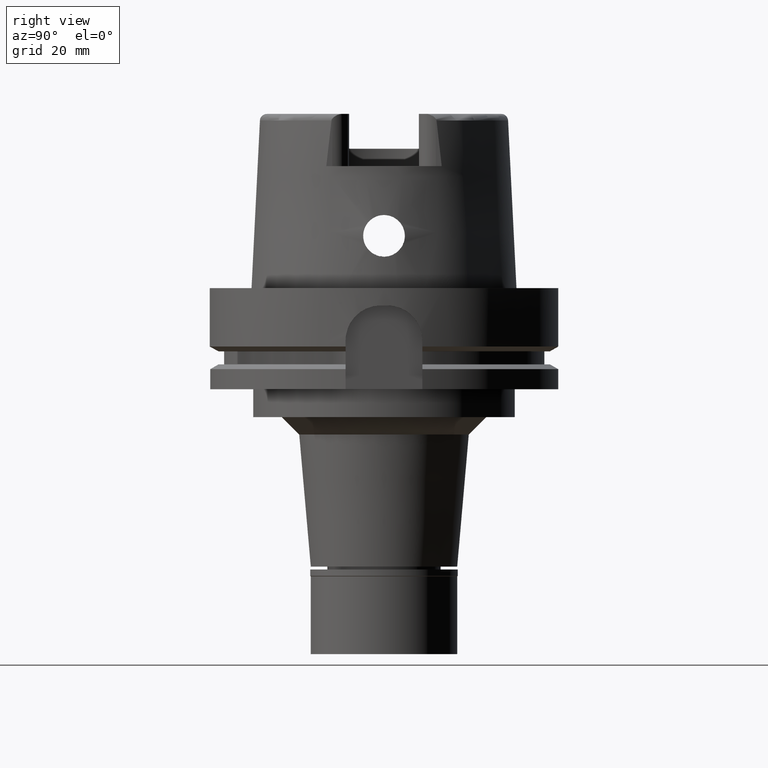
[diagram: clean part render]
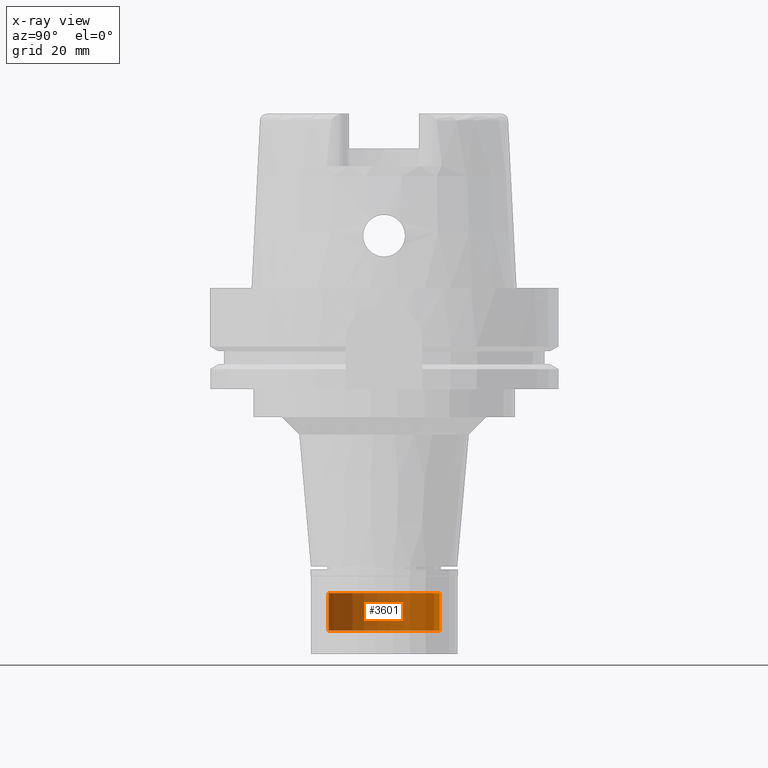
[diagram: x-ray — body ghosted, one internal face saturated and labeled with its STEP entity id]
A machine part, right view, then the same camera in x-ray: the body is ghosted and one INTERNAL B-rep face — a face not visible from any outside direction — is saturated and labeled: STEP entity #3601.
In plain terms, the highlighted cylindrical surface (partial cylindrical patch) has radius 16 mm, axis along (0, 0, -1).
Its self-contained STEP definition (entity closure, byte-faithful):
#162 = VERTEX_POINT ( 'NONE', #3824 ) ;
#201 = EDGE_LOOP ( 'NONE', ( #2435, #4673, #315, #1211 ) ) ;
#292 = VERTEX_POINT ( 'NONE', #3342 ) ;
#315 = ORIENTED_EDGE ( 'NONE', *, *, #5372, .T. ) ;
#323 = EDGE_CURVE ( 'NONE', #5589, #2929, #3712, .T. ) ;
#423 = CYLINDRICAL_SURFACE ( 'NONE', #4082, 16.00000000000000000 ) ;
#515 = CARTESIAN_POINT ( 'NONE',  ( 0.0000000000000000000, -16.00000000000000000, -6.799999999999999822 ) ) ;
#627 = VECTOR ( 'NONE', #5063, 1000.000000000000000 ) ;
#1211 = ORIENTED_EDGE ( 'NONE', *, *, #1937, .T. ) ;
#1453 = CARTESIAN_POINT ( 'NONE',  ( 0.0000000000000000000, 0.0000000000000000000, -6.799999999999999822 ) ) ;
#1544 = CARTESIAN_POINT ( 'NONE',  ( 0.0000000000000000000, 16.00000000000000000, -17.50000000000000000 ) ) ;
#1708 = DIRECTION ( 'NONE',  ( 0.0000000000000000000, -1.000000000000000000, 0.0000000000000000000 ) ) ;
#1840 = CIRCLE ( 'NONE', #4278, 16.00000000000000000 ) ;
#1937 = EDGE_CURVE ( 'NONE', #162, #292, #4109, .T. ) ;
#2435 = ORIENTED_EDGE ( 'NONE', *, *, #4218, .T. ) ;
#2658 = CIRCLE ( 'NONE', #5296, 16.00000000000000000 ) ;
#2663 = DIRECTION ( 'NONE',  ( 0.0000000000000000000, 1.000000000000000000, 0.0000000000000000000 ) ) ;
#2929 = VERTEX_POINT ( 'NONE', #515 ) ;
#3209 = DIRECTION ( 'NONE',  ( 0.0000000000000000000, 0.0000000000000000000, 1.000000000000000000 ) ) ;
#3311 = DIRECTION ( 'NONE',  ( 0.0000000000000000000, -1.000000000000000000, 0.0000000000000000000 ) ) ;
#3342 = CARTESIAN_POINT ( 'NONE',  ( 0.0000000000000000000, 16.00000000000000000, -6.799999999999999822 ) ) ;
#3388 = VECTOR ( 'NONE', #3209, 1000.000000000000000 ) ;
#3601 = ADVANCED_FACE ( 'NONE', ( #3791 ), #423, .F. ) ;
#3712 = LINE ( 'NONE', #5486, #627 ) ;
#3791 = FACE_OUTER_BOUND ( 'NONE', #201, .T. ) ;
#3824 = CARTESIAN_POINT ( 'NONE',  ( 0.0000000000000000000, 16.00000000000000000, -17.50000000000000000 ) ) ;
#3848 = CARTESIAN_POINT ( 'NONE',  ( 0.0000000000000000000, 0.0000000000000000000, -17.50000000000000000 ) ) ;
#3878 = DIRECTION ( 'NONE',  ( 0.0000000000000000000, 0.0000000000000000000, -1.000000000000000000 ) ) ;
#3985 = DIRECTION ( 'NONE',  ( 0.0000000000000000000, 0.0000000000000000000, 1.000000000000000000 ) ) ;
#4082 = AXIS2_PLACEMENT_3D ( 'NONE', #4368, #3878, #1708 ) ;
#4109 = LINE ( 'NONE', #1544, #3388 ) ;
#4218 = EDGE_CURVE ( 'NONE', #292, #2929, #2658, .T. ) ;
#4224 = DIRECTION ( 'NONE',  ( 0.0000000000000000000, 0.0000000000000000000, -1.000000000000000000 ) ) ;
#4278 = AXIS2_PLACEMENT_3D ( 'NONE', #3848, #4224, #3311 ) ;
#4368 = CARTESIAN_POINT ( 'NONE',  ( 0.0000000000000000000, 0.0000000000000000000, 0.0000000000000000000 ) ) ;
#4673 = ORIENTED_EDGE ( 'NONE', *, *, #323, .F. ) ;
#4743 = CARTESIAN_POINT ( 'NONE',  ( 0.0000000000000000000, -16.00000000000000000, -17.50000000000000000 ) ) ;
#5063 = DIRECTION ( 'NONE',  ( 0.0000000000000000000, 0.0000000000000000000, 1.000000000000000000 ) ) ;
#5296 = AXIS2_PLACEMENT_3D ( 'NONE', #1453, #3985, #2663 ) ;
#5372 = EDGE_CURVE ( 'NONE', #5589, #162, #1840, .T. ) ;
#5486 = CARTESIAN_POINT ( 'NONE',  ( 0.0000000000000000000, -16.00000000000000000, -17.50000000000000000 ) ) ;
#5589 = VERTEX_POINT ( 'NONE', #4743 ) ;